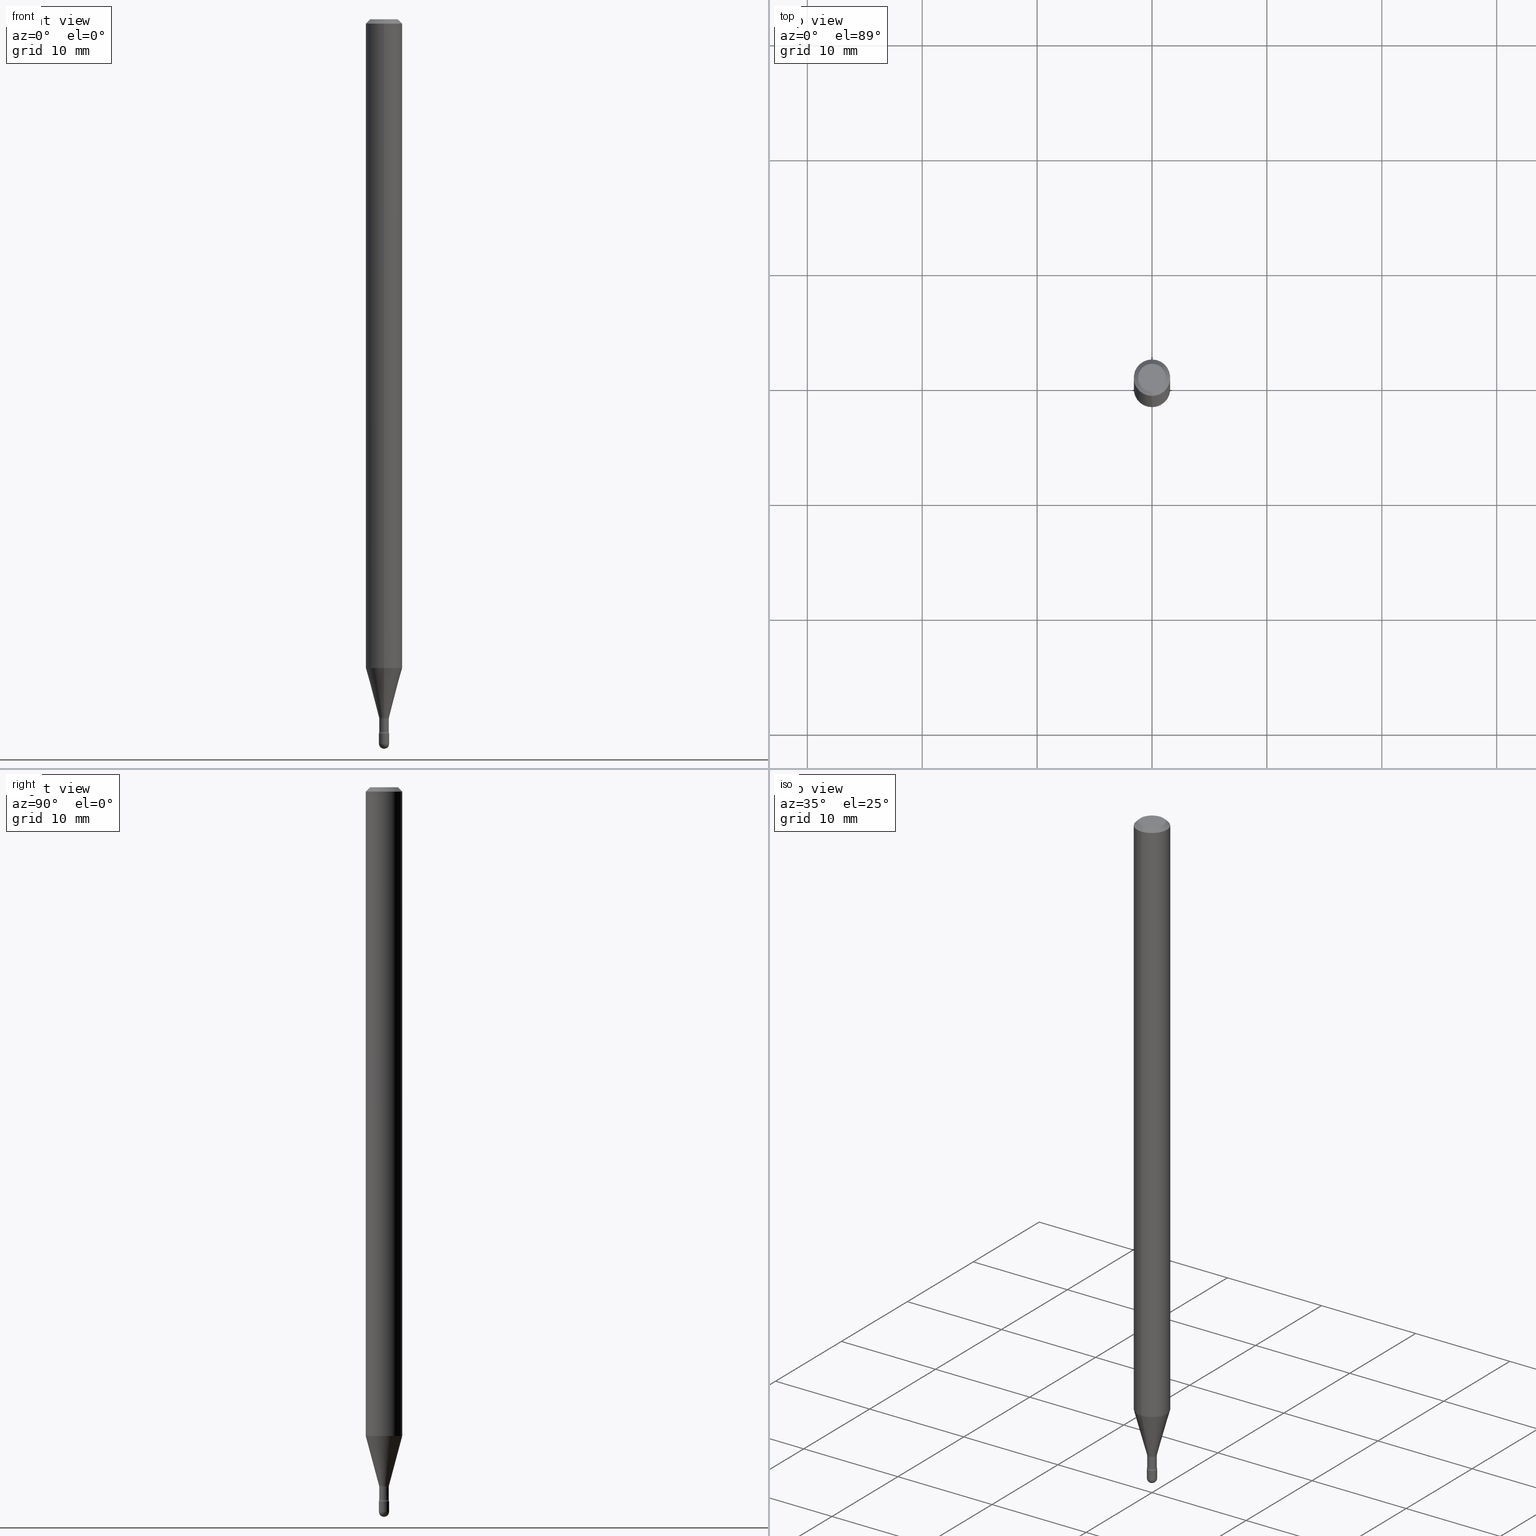
[diagram: canonical four-view strip — front | top / right | iso, engineering-drawing reading convention]
A machine part, canonical four-view strip (front | top / right | iso — engineering-drawing reading convention). The complete STEP part file that produces these views, byte-faithful:
ISO-10303-21;
HEADER;
FILE_DESCRIPTION (( 'STEP AP203' ),
    '1' );
FILE_NAME ('03811.STEP',
    '2024-04-09T20:33:47',
    ( '' ),
    ( '' ),
    'SwSTEP 2.0',
    'SolidWorks 2023',
    '' );
FILE_SCHEMA (( 'CONFIG_CONTROL_DESIGN' ));
ENDSEC;

DATA;
#1 = ADVANCED_FACE ( 'NONE', ( #518 ), #296, .T. ) ;
#2 = ORIENTED_EDGE ( 'NONE', *, *, #265, .F. ) ;
#3 = APPROVAL_ROLE ( '' ) ;
#4 = VECTOR ( 'NONE', #497, 39.37007874015748143 ) ;
#5 = PERSON_AND_ORGANIZATION ( #561, #443 ) ;
#6 = CC_DESIGN_PERSON_AND_ORGANIZATION_ASSIGNMENT ( #305, #326, ( #517 ) ) ;
#7 = EDGE_LOOP ( 'NONE', ( #103, #446 ) ) ;
#8 = APPROVAL_ROLE ( '' ) ;
#9 = AXIS2_PLACEMENT_3D ( 'NONE', #220, #399, #266 ) ;
#10 = LOCAL_TIME ( 16, 33, 47.00000000000000000, #351 ) ;
#11 = APPLICATION_PROTOCOL_DEFINITION ( 'international standard', 'config_control_design', 1994, #51 ) ;
#12 = EDGE_LOOP ( 'NONE', ( #187, #319, #507, #26 ) ) ;
#13 = LINE ( 'NONE', #55, #262 ) ;
#14 = FACE_OUTER_BOUND ( 'NONE', #350, .T. ) ;
#15 = APPROVAL_STATUS ( 'not_yet_approved' ) ;
#16 = EDGE_LOOP ( 'NONE', ( #283, #69, #60, #362 ) ) ;
#17 = EDGE_CURVE ( 'NONE', #406, #105, #72, .T. ) ;
#18 = CARTESIAN_POINT ( 'NONE',  ( 5.984062168735030320E-29, -8.543654836149177676E-15, -2.447000000000000064 ) ) ;
#19 = APPROVAL_DATE_TIME ( #59, #49 ) ;
#20 = ORIENTED_EDGE ( 'NONE', *, *, #543, .F. ) ;
#21 = CARTESIAN_POINT ( 'NONE',  ( -3.773273898774340269E-16, -0.04749999999999999362, 8.309700177680305728E-17 ) ) ;
#22 = DIRECTION ( 'NONE',  ( -2.445478580471014019E-29, 3.491467341509451420E-15, 1.000000000000000000 ) ) ;
#23 = ORIENTED_EDGE ( 'NONE', *, *, #449, .F. ) ;
#24 = DIRECTION ( 'NONE',  ( -2.445478580471014019E-29, 3.491467341509451420E-15, 1.000000000000000000 ) ) ;
#25 = CC_DESIGN_DATE_AND_TIME_ASSIGNMENT ( #394, #87, ( #327 ) ) ;
#26 = ORIENTED_EDGE ( 'NONE', *, *, #341, .T. ) ;
#27 = CARTESIAN_POINT ( 'NONE',  ( 5.970579338663440992E-29, -8.524404928127173343E-15, -2.441486607215153537 ) ) ;
#28 = DIRECTION ( 'NONE',  ( -2.445468806185136597E-29, 3.491481338843145583E-15, 1.000000000000000000 ) ) ;
#29 = LINE ( 'NONE', #33, #292 ) ;
#30 = TOROIDAL_SURFACE ( 'NONE', #271, 0.03145000000000000573, 0.01500000000000000465 ) ;
#31 = DIRECTION ( 'NONE',  ( 1.000000000000000000, -6.982962677686265922E-15, 4.883557194083112340E-29 ) ) ;
#32 = AXIS2_PLACEMENT_3D ( 'NONE', #174, #288, #468 ) ;
#33 = CARTESIAN_POINT ( 'NONE',  ( 4.440892098500625669E-16, 0.06250000000000000000, 2.598566900469053741E-16 ) ) ;
#34 = CARTESIAN_POINT ( 'NONE',  ( 1.168842800325962075E-16, 0.01644999999999163451, -2.396974787463811207 ) ) ;
#35 = DESIGN_CONTEXT ( 'detailed design', #138, 'design' ) ;
#36 = FACE_OUTER_BOUND ( 'NONE', #390, .T. ) ;
#37 = DIRECTION ( 'NONE',  ( -7.105427357601001859E-15, -1.000000000000000000, 0.000000000000000000 ) ) ;
#38 = CARTESIAN_POINT ( 'NONE',  ( 0.000000000000000000, 0.000000000000000000, 0.000000000000000000 ) ) ;
#39 = AXIS2_PLACEMENT_3D ( 'NONE', #237, #289, #58 ) ;
#40 = CIRCLE ( 'NONE', #183, 0.01500000000000000638 ) ;
#41 = LINE ( 'NONE', #73, #505 ) ;
#42 = ADVANCED_FACE ( 'NONE', ( #172 ), #290, .T. ) ;
#43 = EDGE_CURVE ( 'NONE', #367, #267, #392, .T. ) ;
#44 = EDGE_LOOP ( 'NONE', ( #2, #279, #433, #404 ) ) ;
#45 = CALENDAR_DATE ( 2024, 9, 4 ) ;
#46 = AXIS2_PLACEMENT_3D ( 'NONE', #143, #317, #155 ) ;
#47 = AXIS2_PLACEMENT_3D ( 'NONE', #230, #402, #542 ) ;
#48 = LOCAL_TIME ( 16, 33, 47.00000000000000000, #145 ) ;
#49 = APPROVAL ( #15, 'UNSPECIFIED' ) ;
#50 = PERSON_AND_ORGANIZATION_ROLE ( 'creator' ) ;
#51 = APPLICATION_CONTEXT ( 'configuration controlled 3d designs of mechanical parts and assemblies' ) ;
#52 = ORIENTED_EDGE ( 'NONE', *, *, #299, .F. ) ;
#53 = DATE_AND_TIME ( #45, #349 ) ;
#54 = ADVANCED_FACE ( 'NONE', ( #339 ), #162, .F. ) ;
#55 = CARTESIAN_POINT ( 'NONE',  ( -1.184388162973271173E-16, -0.01696111260567233561, -2.393092501787273285 ) ) ;
#56 = ORIENTED_EDGE ( 'NONE', *, *, #440, .F. ) ;
#57 = DIRECTION ( 'NONE',  ( -1.807323732225328562E-15, -0.2588190451025179639, 0.9659258262890690894 ) ) ;
#58 = DIRECTION ( 'NONE',  ( -6.982962677686265922E-15, -1.000000000000000000, 0.000000000000000000 ) ) ;
#59 = DATE_AND_TIME ( #318, #48 ) ;
#60 = ORIENTED_EDGE ( 'NONE', *, *, #424, .T. ) ;
#61 = CARTESIAN_POINT ( 'NONE',  ( 6.070876311354602409E-29, -8.667602423678108373E-15, -2.482499999999999929 ) ) ;
#62 = DIRECTION ( 'NONE',  ( -6.982962677686266711E-15, -1.000000000000000000, 0.000000000000000000 ) ) ;
#63 = VERTEX_POINT ( 'NONE', #252 ) ;
#64 = CLOSED_SHELL ( 'NONE', ( #85, #522, #108, #42, #530 ) ) ;
#65 = AXIS2_PLACEMENT_3D ( 'NONE', #27, #372, #110 ) ;
#66 = EDGE_CURVE ( 'NONE', #255, #152, #144, .T. ) ;
#67 = DIRECTION ( 'NONE',  ( -6.982962677686265922E-15, -1.000000000000000000, 0.000000000000000000 ) ) ;
#68 = DIRECTION ( 'NONE',  ( 1.000000000000000000, -6.982962677686305365E-15, 0.000000000000000000 ) ) ;
#69 = ORIENTED_EDGE ( 'NONE', *, *, #100, .T. ) ;
#70 = DIRECTION ( 'NONE',  ( -6.982962677686265922E-15, -1.000000000000000000, 3.483106191921935554E-15 ) ) ;
#71 = DIRECTION ( 'NONE',  ( -2.445478580471014019E-29, 3.491467341509451420E-15, 1.000000000000000000 ) ) ;
#72 = LINE ( 'NONE', #343, #221 ) ;
#73 = CARTESIAN_POINT ( 'NONE',  ( 1.205159535236945642E-16, 0.01696111260565562676, -2.393092501787273285 ) ) ;
#74 = CARTESIAN_POINT ( 'NONE',  ( 3.668217870706541208E-31, -5.237201012264205677E-17, -0.01500000000000008271 ) ) ;
#75 = FACE_OUTER_BOUND ( 'NONE', #334, .T. ) ;
#76 = AXIS2_PLACEMENT_3D ( 'NONE', #246, #127, #472 ) ;
#77 = EDGE_CURVE ( 'NONE', #532, #190, #131, .T. ) ;
#78 = DIRECTION ( 'NONE',  ( 2.445478580471013739E-29, -3.491467341509451420E-15, -1.000000000000000000 ) ) ;
#79 = DIRECTION ( 'NONE',  ( -2.445468806185136877E-29, 3.491481338843145188E-15, 1.000000000000000000 ) ) ;
#80 = DIRECTION ( 'NONE',  ( -2.445478580471014019E-29, 3.491467341509451420E-15, 1.000000000000000000 ) ) ;
#81 = DIRECTION ( 'NONE',  ( -1.000000000000000000, 7.105427357601001070E-15, -4.926315508542082329E-29 ) ) ;
#82 = DIRECTION ( 'NONE',  ( -2.445478580471014019E-29, 3.491467341509451420E-15, 1.000000000000000000 ) ) ;
#83 = CARTESIAN_POINT ( 'NONE',  ( 6.070876311354602409E-29, -8.667602423678108373E-15, -2.482499999999999929 ) ) ;
#84 = CIRCLE ( 'NONE', #101, 0.06250000000000000000 ) ;
#85 = ADVANCED_FACE ( 'NONE', ( #36 ), #467, .T. ) ;
#86 = CC_DESIGN_APPROVAL ( #388, ( #517 ) ) ;
#87 = DATE_TIME_ROLE ( 'creation_date' ) ;
#88 = ORIENTED_EDGE ( 'NONE', *, *, #149, .T. ) ;
#89 = ADVANCED_FACE ( 'NONE', ( #249 ), #421, .T. ) ;
#90 = VERTEX_POINT ( 'NONE', #119 ) ;
#91 = PERSON_AND_ORGANIZATION ( #561, #443 ) ;
#92 = AXIS2_PLACEMENT_3D ( 'NONE', #336, #457, #448 ) ;
#93 = VECTOR ( 'NONE', #96, 39.37007874015748143 ) ;
#94 = VERTEX_POINT ( 'NONE', #416 ) ;
#95 = EDGE_CURVE ( 'NONE', #524, #105, #29, .T. ) ;
#96 = DIRECTION ( 'NONE',  ( -2.445478580471014019E-29, 3.491467341509451420E-15, 1.000000000000000000 ) ) ;
#97 = CALENDAR_DATE ( 2024, 9, 4 ) ;
#98 = ORIENTED_EDGE ( 'NONE', *, *, #149, .F. ) ;
#99 = FACE_OUTER_BOUND ( 'NONE', #273, .T. ) ;
#100 = EDGE_CURVE ( 'NONE', #94, #308, #564, .T. ) ;
#101 = AXIS2_PLACEMENT_3D ( 'NONE', #495, #405, #506 ) ;
#102 = AXIS2_PLACEMENT_3D ( 'NONE', #546, #324, #67 ) ;
#103 = ORIENTED_EDGE ( 'NONE', *, *, #235, .T. ) ;
#104 = FACE_OUTER_BOUND ( 'NONE', #44, .T. ) ;
#105 = VERTEX_POINT ( 'NONE', #410 ) ;
#106 = DIRECTION ( 'NONE',  ( -6.982962677686265133E-15, -1.000000000000000000, 0.000000000000000000 ) ) ;
#107 = CARTESIAN_POINT ( 'NONE',  ( -4.364351673553374845E-16, -0.06250000000000778544, -2.223139060311453363 ) ) ;
#108 = ADVANCED_FACE ( 'NONE', ( #205 ), #247, .T. ) ;
#109 = ORIENTED_EDGE ( 'NONE', *, *, #461, .F. ) ;
#110 = DIRECTION ( 'NONE',  ( -6.982962677686265133E-15, -1.000000000000000000, 3.491467341509451026E-15 ) ) ;
#111 = DIRECTION ( 'NONE',  ( -6.982962677686266711E-15, -1.000000000000000000, 0.000000000000000000 ) ) ;
#112 = AXIS2_PLACEMENT_3D ( 'NONE', #207, #82, #377 ) ;
#113 = VERTEX_POINT ( 'NONE', #415 ) ;
#114 = CONICAL_SURFACE ( 'NONE', #344, 0.06250000000000000000, 0.7853981633974483900 ) ;
#115 = DIRECTION ( 'NONE',  ( 2.445478580471014019E-29, -3.491467341509451420E-15, -1.000000000000000000 ) ) ;
#116 = ORIENTED_EDGE ( 'NONE', *, *, #43, .T. ) ;
#117 = DIRECTION ( 'NONE',  ( -6.982962677686265133E-15, -1.000000000000000000, 0.000000000000000000 ) ) ;
#118 = DIRECTION ( 'NONE',  ( -2.445468806185136597E-29, 3.491481338843145583E-15, 1.000000000000000000 ) ) ;
#119 = CARTESIAN_POINT ( 'NONE',  ( 0.01750000000000000167, -8.665856683008687659E-15, -2.447000000000000064 ) ) ;
#120 = CARTESIAN_POINT ( 'NONE',  ( 3.668217870706541208E-31, -5.237201012264205677E-17, -0.01500000000000008271 ) ) ;
#121 = EDGE_CURVE ( 'NONE', #267, #367, #364, .T. ) ;
#122 = CARTESIAN_POINT ( 'NONE',  ( 1.206146293953367664E-16, 0.01644999999999147838, -2.441486607215153537 ) ) ;
#123 = DIRECTION ( 'NONE',  ( -1.000000000000000000, 6.982962677686265922E-15, -4.883557194083112340E-29 ) ) ;
#124 = AXIS2_PLACEMENT_3D ( 'NONE', #544, #28, #68 ) ;
#125 = CIRCLE ( 'NONE', #470, 0.01500000000000002373 ) ;
#126 = DIRECTION ( 'NONE',  ( 6.982962677686265922E-15, 1.000000000000000000, 0.000000000000000000 ) ) ;
#127 = DIRECTION ( 'NONE',  ( -1.000000000000000000, 6.982962677686265922E-15, -4.883557194083112340E-29 ) ) ;
#128 = DIRECTION ( 'NONE',  ( 1.000000000000000000, -6.982962677686265922E-15, 4.876176775795936353E-29 ) ) ;
#129 = ADVANCED_FACE ( 'NONE', ( #373 ), #30, .F. ) ;
#130 = CALENDAR_DATE ( 2024, 9, 4 ) ;
#131 = CIRCLE ( 'NONE', #430, 0.01749999999999999820 ) ;
#132 = CIRCLE ( 'NONE', #332, 0.04749999999999999362 ) ;
#133 = ORIENTED_EDGE ( 'NONE', *, *, #489, .T. ) ;
#134 = DATE_AND_TIME ( #527, #10 ) ;
#135 = AXIS2_PLACEMENT_3D ( 'NONE', #244, #286, #202 ) ;
#136 = AXIS2_PLACEMENT_3D ( 'NONE', #201, #460, #188 ) ;
#137 = ORIENTED_EDGE ( 'NONE', *, *, #341, .F. ) ;
#138 = APPLICATION_CONTEXT ( 'configuration controlled 3d designs of mechanical parts and assemblies' ) ;
#139 = ORIENTED_EDGE ( 'NONE', *, *, #315, .F. ) ;
#140 = EDGE_CURVE ( 'NONE', #524, #264, #84, .T. ) ;
#141 = ORIENTED_EDGE ( 'NONE', *, *, #369, .F. ) ;
#142 = FACE_OUTER_BOUND ( 'NONE', #242, .T. ) ;
#143 = CARTESIAN_POINT ( 'NONE',  ( 5.984062168735030320E-29, -8.543654836149177676E-15, -2.447000000000000064 ) ) ;
#144 = CIRCLE ( 'NONE', #342, 0.01749999999999999820 ) ;
#145 = COORDINATED_UNIVERSAL_TIME_OFFSET ( 5, 0, .BEHIND. ) ;
#146 = CIRCLE ( 'NONE', #222, 0.01644999999999999934 ) ;
#147 = ORIENTED_EDGE ( 'NONE', *, *, #284, .T. ) ;
#148 = CARTESIAN_POINT ( 'NONE',  ( 1.168842800325364759E-16, 0.01644999999999999934, 4.206387611234156260E-16 ) ) ;
#149 = EDGE_CURVE ( 'NONE', #190, #255, #529, .T. ) ;
#150 = CARTESIAN_POINT ( 'NONE',  ( -1.243449787579568514E-16, -0.01750000000000867181, -2.482500000000000817 ) ) ;
#151 = SHAPE_DEFINITION_REPRESENTATION ( #473, #476 ) ;
#152 = VERTEX_POINT ( 'NONE', #150 ) ;
#153 = DIRECTION ( 'NONE',  ( -2.445478580471014019E-29, 3.491467341509451420E-15, 1.000000000000000000 ) ) ;
#154 = ORIENTED_EDGE ( 'NONE', *, *, #380, .T. ) ;
#155 = DIRECTION ( 'NONE',  ( 1.000000000000000000, -6.982962677686265922E-15, 4.876176775795935793E-29 ) ) ;
#156 = CIRCLE ( 'NONE', #492, 0.01749999999999999820 ) ;
#157 = ORIENTED_EDGE ( 'NONE', *, *, #180, .F. ) ;
#158 = AXIS2_PLACEMENT_3D ( 'NONE', #61, #31, #519 ) ;
#159 = ADVANCED_FACE ( 'NONE', ( #104 ), #383, .T. ) ;
#160 = CARTESIAN_POINT ( 'NONE',  ( 2.234656903966112561E-16, 0.03144999999999148477, -2.441486607215153537 ) ) ;
#161 = CARTESIAN_POINT ( 'NONE',  ( 5.436638953400117610E-29, -7.762017424711450780E-15, -2.223139060311453363 ) ) ;
#162 = PLANE ( 'NONE',  #469 ) ;
#163 = CYLINDRICAL_SURFACE ( 'NONE', #32, 0.01750000000000000167 ) ;
#164 = DIRECTION ( 'NONE',  ( -2.445478580471014019E-29, 3.491467341509451420E-15, 1.000000000000000000 ) ) ;
#165 =( LENGTH_UNIT ( ) NAMED_UNIT ( * ) SI_UNIT ( $, .METRE. ) );
#166 = ORIENTED_EDGE ( 'NONE', *, *, #121, .F. ) ;
#167 = AXIS2_PLACEMENT_3D ( 'NONE', #161, #22, #510 ) ;
#168 =( NAMED_UNIT ( * ) PLANE_ANGLE_UNIT ( ) SI_UNIT ( $, .RADIAN. ) );
#169 = CIRCLE ( 'NONE', #531, 0.06250000000000000000 ) ;
#170 = CARTESIAN_POINT ( 'NONE',  ( -1.169113584055446105E-44, 1.669184350826100908E-30, 4.780733988912460139E-16 ) ) ;
#171 = ADVANCED_FACE ( 'NONE', ( #14 ), #301, .T. ) ;
#172 = FACE_OUTER_BOUND ( 'NONE', #441, .T. ) ;
#173 = CARTESIAN_POINT ( 'NONE',  ( -0.01750000000000000167, 1.243449787580175444E-16, -8.608136407946085539E-31 ) ) ;
#174 = CARTESIAN_POINT ( 'NONE',  ( 0.000000000000000000, 0.000000000000000000, 0.000000000000000000 ) ) ;
#175 = EDGE_LOOP ( 'NONE', ( #397, #306 ) ) ;
#176 = AXIS2_PLACEMENT_3D ( 'NONE', #74, #115, #275 ) ;
#177 = CONICAL_SURFACE ( 'NONE', #216, 0.01696111260566398118, 0.2617993877991500740 ) ;
#178 = ORIENTED_EDGE ( 'NONE', *, *, #465, .T. ) ;
#179 = COORDINATED_UNIVERSAL_TIME_OFFSET ( 5, 0, .BEHIND. ) ;
#180 = EDGE_CURVE ( 'NONE', #308, #94, #418, .T. ) ;
#181 = PERSON_AND_ORGANIZATION_ROLE ( 'creator' ) ;
#182 = ORIENTED_EDGE ( 'NONE', *, *, #224, .F. ) ;
#183 = AXIS2_PLACEMENT_3D ( 'NONE', #291, #211, #117 ) ;
#184 = LOCAL_TIME ( 16, 33, 47.00000000000000000, #179 ) ;
#185 = CC_DESIGN_PERSON_AND_ORGANIZATION_ASSIGNMENT ( #509, #464, ( #333 ) ) ;
#186 = ORIENTED_EDGE ( 'NONE', *, *, #95, .F. ) ;
#187 = ORIENTED_EDGE ( 'NONE', *, *, #483, .F. ) ;
#188 = DIRECTION ( 'NONE',  ( 7.105427357600999492E-15, 1.000000000000000000, 0.000000000000000000 ) ) ;
#189 = CARTESIAN_POINT ( 'NONE',  ( 5.852256454206568182E-29, -8.355404315201413602E-15, -2.393092501787273285 ) ) ;
#190 = VERTEX_POINT ( 'NONE', #376 ) ;
#191 = EDGE_CURVE ( 'NONE', #152, #532, #156, .T. ) ;
#192 = CARTESIAN_POINT ( 'NONE',  ( 5.852256454206568182E-29, -8.355404315201413602E-15, -2.393092501787273285 ) ) ;
#193 = DIRECTION ( 'NONE',  ( -2.445478580471014019E-29, 3.491467341509451420E-15, 1.000000000000000000 ) ) ;
#194 = TOROIDAL_SURFACE ( 'NONE', #92, 0.03144999999999999879, 0.01500000000000002373 ) ;
#195 = VECTOR ( 'NONE', #79, 39.37007874015748143 ) ;
#196 = VERTEX_POINT ( 'NONE', #556 ) ;
#197 = DIMENSIONAL_EXPONENTS ( 1.000000000000000000, 0.000000000000000000, 0.000000000000000000, 0.000000000000000000, 0.000000000000000000, 0.000000000000000000, 0.000000000000000000 ) ;
#198 = CARTESIAN_POINT ( 'NONE',  ( -2.196141762131744153E-16, -0.03145000000000836710, -2.396974787463811207 ) ) ;
#199 = CARTESIAN_POINT ( 'NONE',  ( 6.070876311354603530E-29, -8.667602423678111529E-15, -2.482500000000000817 ) ) ;
#200 = ORIENTED_EDGE ( 'NONE', *, *, #219, .T. ) ;
#201 = CARTESIAN_POINT ( 'NONE',  ( 2.234656903966100728E-16, 0.03144999999999163048, -2.396974787463811207 ) ) ;
#202 = DIRECTION ( 'NONE',  ( -6.982962677686266711E-15, -1.000000000000000000, 0.000000000000000000 ) ) ;
#203 = EDGE_LOOP ( 'NONE', ( #200, #231, #563, #23 ) ) ;
#204 = DIRECTION ( 'NONE',  ( -6.982962677686266711E-15, -1.000000000000000000, 0.000000000000000000 ) ) ;
#205 = FACE_OUTER_BOUND ( 'NONE', #7, .T. ) ;
#206 = ADVANCED_FACE ( 'NONE', ( #501 ), #194, .F. ) ;
#207 = CARTESIAN_POINT ( 'NONE',  ( -1.169113584055446105E-44, 1.669184350826100908E-30, 4.780733988912460139E-16 ) ) ;
#208 = CIRCLE ( 'NONE', #493, 0.01644999999999999934 ) ;
#209 = CARTESIAN_POINT ( 'NONE',  ( 5.861727071954997320E-29, -8.368992740107411140E-15, -2.396974787463811207 ) ) ;
#210 = DIRECTION ( 'NONE',  ( -2.445478580471014019E-29, 3.491467341509451420E-15, 1.000000000000000000 ) ) ;
#211 = DIRECTION ( 'NONE',  ( -1.000000000000000000, 6.982962677686265922E-15, -4.883557194083112340E-29 ) ) ;
#212 = DIRECTION ( 'NONE',  ( -2.445468806185136597E-29, 3.491481338843145583E-15, 1.000000000000000000 ) ) ;
#213 = CARTESIAN_POINT ( 'NONE',  ( 4.440892098501168504E-16, 0.06249999999999222844, -2.223139060311453807 ) ) ;
#214 = PRODUCT_RELATED_PRODUCT_CATEGORY ( 'detail', '', ( #551 ) ) ;
#215 = ORIENTED_EDGE ( 'NONE', *, *, #226, .F. ) ;
#216 = AXIS2_PLACEMENT_3D ( 'NONE', #192, #407, #236 ) ;
#217 = DIRECTION ( 'NONE',  ( -2.445478580471014019E-29, 3.491467341509451420E-15, 1.000000000000000000 ) ) ;
#218 = LINE ( 'NONE', #173, #195 ) ;
#219 = EDGE_CURVE ( 'NONE', #264, #524, #408, .T. ) ;
#220 = CARTESIAN_POINT ( 'NONE',  ( 0.000000000000000000, 0.000000000000000000, 0.000000000000000000 ) ) ;
#221 = VECTOR ( 'NONE', #511, 39.37007874015748143 ) ;
#222 = AXIS2_PLACEMENT_3D ( 'NONE', #363, #412, #204 ) ;
#223 = ORIENTED_EDGE ( 'NONE', *, *, #516, .F. ) ;
#224 = EDGE_CURVE ( 'NONE', #557, #90, #238, .T. ) ;
#225 = PERSON_AND_ORGANIZATION_ROLE ( 'design_owner' ) ;
#226 = EDGE_CURVE ( 'NONE', #63, #229, #281, .T. ) ;
#227 = COORDINATED_UNIVERSAL_TIME_OFFSET ( 5, 0, .BEHIND. ) ;
#228 = AXIS2_PLACEMENT_3D ( 'NONE', #321, #278, #559 ) ;
#229 = VERTEX_POINT ( 'NONE', #370 ) ;
#230 = CARTESIAN_POINT ( 'NONE',  ( 1.222018468595694927E-16, 0.01749999999999145642, -2.447000000000000064 ) ) ;
#231 = ORIENTED_EDGE ( 'NONE', *, *, #95, .T. ) ;
#232 = CARTESIAN_POINT ( 'NONE',  ( -4.364351673553916201E-16, -0.06250000000000000000, 6.962901077355868016E-16 ) ) ;
#233 = CARTESIAN_POINT ( 'NONE',  ( 5.861750500671810310E-29, -8.368959188851455956E-15, -2.396974787463811207 ) ) ;
#234 = ORIENTED_EDGE ( 'NONE', *, *, #180, .T. ) ;
#235 = EDGE_CURVE ( 'NONE', #90, #557, #419, .T. ) ;
#236 = DIRECTION ( 'NONE',  ( -6.982962677686266711E-15, -1.000000000000000000, 0.000000000000000000 ) ) ;
#237 = CARTESIAN_POINT ( 'NONE',  ( 5.984086086412572106E-29, -8.543620584673628985E-15, -2.447000000000000064 ) ) ;
#238 = CIRCLE ( 'NONE', #248, 0.01750000000000000167 ) ;
#239 = ORIENTED_EDGE ( 'NONE', *, *, #543, .T. ) ;
#240 = DIRECTION ( 'NONE',  ( 7.105427357601000281E-15, 1.000000000000000000, 0.000000000000000000 ) ) ;
#241 = DIRECTION ( 'NONE',  ( 1.000000000000000000, -6.982962677686248567E-15, 0.000000000000000000 ) ) ;
#242 = EDGE_LOOP ( 'NONE', ( #141, #215 ) ) ;
#243 = FACE_OUTER_BOUND ( 'NONE', #463, .T. ) ;
#244 = CARTESIAN_POINT ( 'NONE',  ( 5.852256454206568182E-29, -8.355404315201413602E-15, -2.393092501787273285 ) ) ;
#245 = CARTESIAN_POINT ( 'NONE',  ( 6.070876311354603530E-29, -8.667602423678111529E-15, -2.482500000000000817 ) ) ;
#246 = CARTESIAN_POINT ( 'NONE',  ( 6.070876311354602409E-29, -8.667602423678108373E-15, -2.482499999999999929 ) ) ;
#247 = PLANE ( 'NONE',  #46 ) ;
#248 = AXIS2_PLACEMENT_3D ( 'NONE', #18, #118, #241 ) ;
#249 = FACE_OUTER_BOUND ( 'NONE', #496, .T. ) ;
#250 = AXIS2_PLACEMENT_3D ( 'NONE', #160, #360, #240 ) ;
#251 = UNCERTAINTY_MEASURE_WITH_UNIT (LENGTH_MEASURE( 1.000000000000000082E-05 ), #295, 'distance_accuracy_value', 'NONE');
#252 = CARTESIAN_POINT ( 'NONE',  ( 1.243449787580773745E-16, 0.01749999999999145642, -2.447000000000000064 ) ) ;
#253 = EDGE_CURVE ( 'NONE', #536, #113, #208, .T. ) ;
#254 = DIRECTION ( 'NONE',  ( 6.982962677686265922E-15, 1.000000000000000000, -3.483106191921935554E-15 ) ) ;
#255 = VERTEX_POINT ( 'NONE', #452 ) ;
#256 = DIRECTION ( 'NONE',  ( 2.445478580471014019E-29, -3.491467341509451420E-15, -1.000000000000000000 ) ) ;
#257 = DIRECTION ( 'NONE',  ( -6.982962677686266711E-15, -1.000000000000000000, 3.491467341509449842E-15 ) ) ;
#258 = CC_DESIGN_APPROVAL ( #508, ( #327 ) ) ;
#259 = CC_DESIGN_PERSON_AND_ORGANIZATION_ASSIGNMENT ( #437, #50, ( #517 ) ) ;
#260 = ORIENTED_EDGE ( 'NONE', *, *, #396, .T. ) ;
#261 = AXIS2_PLACEMENT_3D ( 'NONE', #38, #346, #128 ) ;
#262 = VECTOR ( 'NONE', #57, 39.37007874015748854 ) ;
#263 = APPROVAL_PERSON_ORGANIZATION ( #91, #388, #3 ) ;
#264 = VERTEX_POINT ( 'NONE', #107 ) ;
#265 = EDGE_CURVE ( 'NONE', #312, #406, #480, .T. ) ;
#266 = DIRECTION ( 'NONE',  ( 1.000000000000000000, 0.000000000000000000, 0.000000000000000000 ) ) ;
#267 = VERTEX_POINT ( 'NONE', #122 ) ;
#268 = APPROVAL_DATE_TIME ( #53, #508 ) ;
#269 = ORIENTED_EDGE ( 'NONE', *, *, #322, .F. ) ;
#270 = DIRECTION ( 'NONE',  ( -6.982962677686265922E-15, -1.000000000000000000, 3.491467341509452209E-15 ) ) ;
#271 = AXIS2_PLACEMENT_3D ( 'NONE', #462, #550, #413 ) ;
#272 = APPROVAL_PERSON_ORGANIZATION ( #432, #508, #490 ) ;
#273 = EDGE_LOOP ( 'NONE', ( #186, #313, #304, #137 ) ) ;
#274 = LINE ( 'NONE', #232, #4 ) ;
#275 = DIRECTION ( 'NONE',  ( 6.982962677686265922E-15, 1.000000000000000000, -3.483106191921935554E-15 ) ) ;
#276 = ADVANCED_FACE ( 'NONE', ( #426 ), #300, .T. ) ;
#277 = ORIENTED_EDGE ( 'NONE', *, *, #121, .T. ) ;
#278 = DIRECTION ( 'NONE',  ( -2.445478580471014019E-29, 3.491467341509451420E-15, 1.000000000000000000 ) ) ;
#279 = ORIENTED_EDGE ( 'NONE', *, *, #483, .T. ) ;
#280 = CARTESIAN_POINT ( 'NONE',  ( 3.668217870706541208E-31, -5.237201012264205677E-17, -0.01500000000000008271 ) ) ;
#281 = CIRCLE ( 'NONE', #39, 0.01750000000000000167 ) ;
#282 =( GEOMETRIC_REPRESENTATION_CONTEXT ( 3 ) GLOBAL_UNCERTAINTY_ASSIGNED_CONTEXT ( ( #251 ) ) GLOBAL_UNIT_ASSIGNED_CONTEXT ( ( #295, #168, #521 ) ) REPRESENTATION_CONTEXT ( 'NONE', 'WORKASPACE' ) );
#283 = ORIENTED_EDGE ( 'NONE', *, *, #465, .F. ) ;
#284 = EDGE_CURVE ( 'NONE', #367, #113, #486, .T. ) ;
#285 = DIRECTION ( 'NONE',  ( -1.000000000000000000, 6.982962677686265922E-15, -4.883557194083112340E-29 ) ) ;
#286 = DIRECTION ( 'NONE',  ( -2.445478580471014019E-29, 3.491467341509451420E-15, 1.000000000000000000 ) ) ;
#287 = ORIENTED_EDGE ( 'NONE', *, *, #219, .F. ) ;
#288 = DIRECTION ( 'NONE',  ( -2.445468806185136597E-29, 3.491481338843145583E-15, 1.000000000000000000 ) ) ;
#289 = DIRECTION ( 'NONE',  ( -2.445478580471014019E-29, 3.491467341509451420E-15, 1.000000000000000000 ) ) ;
#290 = SPHERICAL_SURFACE ( 'NONE', #354, 0.01750000000000000860 ) ;
#291 = CARTESIAN_POINT ( 'NONE',  ( -2.196141762131733800E-16, -0.03145000000000853363, -2.441486607215153537 ) ) ;
#292 = VECTOR ( 'NONE', #210, 39.37007874015748143 ) ;
#293 = CARTESIAN_POINT ( 'NONE',  ( 6.070876311354603530E-29, -8.667602423678111529E-15, -2.482500000000000817 ) ) ;
#294 = VECTOR ( 'NONE', #494, 39.37007874015748143 ) ;
#295 =( CONVERSION_BASED_UNIT ( 'INCH', #340 ) LENGTH_UNIT ( ) NAMED_UNIT ( #197 ) );
#296 = CYLINDRICAL_SURFACE ( 'NONE', #112, 0.01644999999999999934 ) ;
#297 = DIRECTION ( 'NONE',  ( 1.839019923739598738E-15, 0.2588190451025247363, 0.9659258262890673130 ) ) ;
#298 = CARTESIAN_POINT ( 'NONE',  ( -1.169113584055446105E-44, 1.669184350826100908E-30, 4.780733988912460139E-16 ) ) ;
#299 = EDGE_CURVE ( 'NONE', #532, #90, #329, .T. ) ;
#300 = CYLINDRICAL_SURFACE ( 'NONE', #409, 0.06250000000000000000 ) ;
#301 = CONICAL_SURFACE ( 'NONE', #135, 0.01696111260566398118, 0.2617993877991500740 ) ;
#302 = TOROIDAL_SURFACE ( 'NONE', #65, 0.03145000000000000573, 0.01500000000000000465 ) ;
#303 = ADVANCED_FACE ( 'NONE', ( #375 ), #177, .T. ) ;
#304 = ORIENTED_EDGE ( 'NONE', *, *, #449, .T. ) ;
#305 = PERSON_AND_ORGANIZATION ( #561, #443 ) ;
#306 = ORIENTED_EDGE ( 'NONE', *, *, #265, .T. ) ;
#307 = APPROVAL_DATE_TIME ( #134, #388 ) ;
#308 = VERTEX_POINT ( 'NONE', #554 ) ;
#309 = AXIS2_PLACEMENT_3D ( 'NONE', #447, #24, #270 ) ;
#310 = CARTESIAN_POINT ( 'NONE',  ( -1.148697360479390763E-16, -0.01644999999999999934, 5.355080366590765005E-16 ) ) ;
#311 = SECURITY_CLASSIFICATION_LEVEL ( 'unclassified' ) ;
#312 = VERTEX_POINT ( 'NONE', #21 ) ;
#313 = ORIENTED_EDGE ( 'NONE', *, *, #140, .T. ) ;
#314 = LINE ( 'NONE', #148, #294 ) ;
#315 = EDGE_CURVE ( 'NONE', #308, #113, #125, .T. ) ;
#316 = CIRCLE ( 'NONE', #158, 0.01750000000000000860 ) ;
#317 = DIRECTION ( 'NONE',  ( -2.438088387897960049E-29, 3.491481338843145188E-15, 1.000000000000000000 ) ) ;
#318 = CALENDAR_DATE ( 2024, 9, 4 ) ;
#319 = ORIENTED_EDGE ( 'NONE', *, *, #475, .F. ) ;
#320 = DIRECTION ( 'NONE',  ( -2.445478580471014019E-29, 3.491467341509451420E-15, 1.000000000000000000 ) ) ;
#321 = CARTESIAN_POINT ( 'NONE',  ( 2.023623932881207323E-45, -2.889041897153307729E-31, -8.274769694489587087E-17 ) ) ;
#322 = EDGE_CURVE ( 'NONE', #94, #536, #565, .T. ) ;
#323 = ORIENTED_EDGE ( 'NONE', *, *, #235, .F. ) ;
#324 = DIRECTION ( 'NONE',  ( -2.445478580471014019E-29, 3.491467341509451420E-15, 1.000000000000000000 ) ) ;
#325 = DIRECTION ( 'NONE',  ( -2.445468806185136597E-29, 3.491481338843145583E-15, 1.000000000000000000 ) ) ;
#326 = PERSON_AND_ORGANIZATION_ROLE ( 'design_supplier' ) ;
#327 = PRODUCT_DEFINITION ( 'UNKNOWN', '', #517, #35 ) ;
#328 = ORIENTED_EDGE ( 'NONE', *, *, #226, .T. ) ;
#329 = LINE ( 'NONE', #504, #365 ) ;
#330 = AXIS2_PLACEMENT_3D ( 'NONE', #513, #80, #560 ) ;
#331 = DIRECTION ( 'NONE',  ( -6.982962677686266711E-15, -1.000000000000000000, 0.000000000000000000 ) ) ;
#332 = AXIS2_PLACEMENT_3D ( 'NONE', #389, #477, #558 ) ;
#333 = SECURITY_CLASSIFICATION ( '', '', #311 ) ;
#334 = EDGE_LOOP ( 'NONE', ( #474, #539, #488, #139 ) ) ;
#335 = CARTESIAN_POINT ( 'NONE',  ( 3.840629472727447874E-16, 0.04749999999999999362, -2.485923956665947867E-16 ) ) ;
#336 = CARTESIAN_POINT ( 'NONE',  ( 5.861727071954997320E-29, -8.368992740107411140E-15, -2.396974787463811207 ) ) ;
#337 = DIRECTION ( 'NONE',  ( 6.982962677686265922E-15, 1.000000000000000000, -3.491467341509451420E-15 ) ) ;
#338 = DIRECTION ( 'NONE',  ( -4.851104656540964275E-15, -0.7071067811865500152, -0.7071067811865450192 ) ) ;
#339 = FACE_OUTER_BOUND ( 'NONE', #175, .T. ) ;
#340 = LENGTH_MEASURE_WITH_UNIT ( LENGTH_MEASURE( 0.02539999999999999897 ), #165 );
#341 = EDGE_CURVE ( 'NONE', #105, #491, #515, .T. ) ;
#342 = AXIS2_PLACEMENT_3D ( 'NONE', #293, #212, #566 ) ;
#343 = CARTESIAN_POINT ( 'NONE',  ( 4.364351673553919652E-16, 0.06249999999999995143, -0.01500000000000030129 ) ) ;
#344 = AXIS2_PLACEMENT_3D ( 'NONE', #120, #256, #254 ) ;
#345 = LINE ( 'NONE', #479, #541 ) ;
#346 = DIRECTION ( 'NONE',  ( -2.445468806185136597E-29, 3.491481338843145583E-15, 1.000000000000000000 ) ) ;
#347 = COORDINATED_UNIVERSAL_TIME_OFFSET ( 5, 0, .BEHIND. ) ;
#348 = ORIENTED_EDGE ( 'NONE', *, *, #191, .F. ) ;
#349 = LOCAL_TIME ( 16, 33, 47.00000000000000000, #347 ) ;
#350 = EDGE_LOOP ( 'NONE', ( #234, #178, #287, #548 ) ) ;
#351 = COORDINATED_UNIVERSAL_TIME_OFFSET ( 5, 0, .BEHIND. ) ;
#352 = DIRECTION ( 'NONE',  ( -6.982962677686265922E-15, -1.000000000000000000, 3.491467341509452209E-15 ) ) ;
#353 = ADVANCED_FACE ( 'NONE', ( #243 ), #302, .F. ) ;
#354 = AXIS2_PLACEMENT_3D ( 'NONE', #382, #123, #126 ) ;
#355 = APPLICATION_PROTOCOL_DEFINITION ( 'international standard', 'config_control_design', 1994, #138 ) ;
#356 = CIRCLE ( 'NONE', #250, 0.01500000000000000638 ) ;
#357 = EDGE_LOOP ( 'NONE', ( #442, #450, #239, #526 ) ) ;
#358 = ORIENTED_EDGE ( 'NONE', *, *, #77, .T. ) ;
#359 = EDGE_CURVE ( 'NONE', #491, #105, #169, .T. ) ;
#360 = DIRECTION ( 'NONE',  ( 1.000000000000000000, -7.105427357601001070E-15, 4.926315337124183355E-29 ) ) ;
#361 = DIRECTION ( 'NONE',  ( -6.982962677686266711E-15, -1.000000000000000000, 0.000000000000000000 ) ) ;
#362 = ORIENTED_EDGE ( 'NONE', *, *, #140, .F. ) ;
#363 = CARTESIAN_POINT ( 'NONE',  ( 5.861750500671810310E-29, -8.368959188851455956E-15, -2.396974787463811207 ) ) ;
#364 = CIRCLE ( 'NONE', #503, 0.01645000000000000281 ) ;
#365 = VECTOR ( 'NONE', #549, 39.37007874015748143 ) ;
#366 = CARTESIAN_POINT ( 'NONE',  ( 5.970603202451505575E-29, -8.524370753824422885E-15, -2.441486607215153537 ) ) ;
#367 = VERTEX_POINT ( 'NONE', #451 ) ;
#368 = DIRECTION ( 'NONE',  ( -6.982962677686265922E-15, -1.000000000000000000, 3.483106191921935554E-15 ) ) ;
#369 = EDGE_CURVE ( 'NONE', #229, #63, #431, .T. ) ;
#370 = CARTESIAN_POINT ( 'NONE',  ( -1.222018468594497830E-16, -0.01750000000000854344, -2.447000000000000064 ) ) ;
#371 = ORIENTED_EDGE ( 'NONE', *, *, #516, .T. ) ;
#372 = DIRECTION ( 'NONE',  ( -2.445478580471014019E-29, 3.491467341509451420E-15, 1.000000000000000000 ) ) ;
#373 = FACE_OUTER_BOUND ( 'NONE', #357, .T. ) ;
#374 = ORIENTED_EDGE ( 'NONE', *, *, #66, .F. ) ;
#375 = FACE_OUTER_BOUND ( 'NONE', #16, .T. ) ;
#376 = CARTESIAN_POINT ( 'NONE',  ( 1.222018468595703801E-16, 0.01749999999999133499, -2.482500000000000817 ) ) ;
#377 = DIRECTION ( 'NONE',  ( -6.982962677686266711E-15, -1.000000000000000000, 3.491467341509449842E-15 ) ) ;
#378 = FACE_OUTER_BOUND ( 'NONE', #453, .T. ) ;
#379 = CARTESIAN_POINT ( 'NONE',  ( 5.852256454206568182E-29, -8.355404315201413602E-15, -2.393092501787273285 ) ) ;
#380 = EDGE_CURVE ( 'NONE', #267, #63, #356, .T. ) ;
#381 = CARTESIAN_POINT ( 'NONE',  ( 0.01749999999999999820, -8.727830476773153796E-15, -2.482500000000000817 ) ) ;
#382 = CARTESIAN_POINT ( 'NONE',  ( 6.070876311354602409E-29, -8.667602423678108373E-15, -2.482499999999999929 ) ) ;
#383 = CONICAL_SURFACE ( 'NONE', #176, 0.06250000000000000000, 0.7853981633974483900 ) ;
#384 = ORIENTED_EDGE ( 'NONE', *, *, #440, .T. ) ;
#385 = TOROIDAL_SURFACE ( 'NONE', #456, 0.03144999999999999879, 0.01500000000000002373 ) ;
#386 = APPROVAL_PERSON_ORGANIZATION ( #403, #49, #8 ) ;
#387 = SPHERICAL_SURFACE ( 'NONE', #76, 0.01750000000000000860 ) ;
#388 = APPROVAL ( #391, 'UNSPECIFIED' ) ;
#389 = CARTESIAN_POINT ( 'NONE',  ( 2.023623932881207323E-45, -2.889041897153307729E-31, -8.274769694489587087E-17 ) ) ;
#390 = EDGE_LOOP ( 'NONE', ( #88, #371, #323, #52, #358 ) ) ;
#391 = APPROVAL_STATUS ( 'not_yet_approved' ) ;
#392 = CIRCLE ( 'NONE', #330, 0.01645000000000000281 ) ;
#393 = ORIENTED_EDGE ( 'NONE', *, *, #461, .T. ) ;
#394 = DATE_AND_TIME ( #130, #184 ) ;
#395 = MECHANICAL_CONTEXT ( 'NONE', #51, 'mechanical' ) ;
#396 = EDGE_CURVE ( 'NONE', #113, #536, #146, .T. ) ;
#397 = ORIENTED_EDGE ( 'NONE', *, *, #475, .T. ) ;
#398 = CLOSED_SHELL ( 'NONE', ( #562, #89, #353, #159, #276, #171, #303, #420, #528, #54, #435, #129, #1, #206 ) ) ;
#399 = DIRECTION ( 'NONE',  ( 0.000000000000000000, 0.000000000000000000, 1.000000000000000000 ) ) ;
#400 = LOCAL_TIME ( 16, 33, 47.00000000000000000, #227 ) ;
#401 = ORIENTED_EDGE ( 'NONE', *, *, #191, .T. ) ;
#402 = DIRECTION ( 'NONE',  ( -2.445478580471013739E-29, 3.491467341509451420E-15, 1.000000000000000000 ) ) ;
#403 = PERSON_AND_ORGANIZATION ( #561, #443 ) ;
#404 = ORIENTED_EDGE ( 'NONE', *, *, #17, .F. ) ;
#405 = DIRECTION ( 'NONE',  ( -2.445478580471014019E-29, 3.491467341509451420E-15, 1.000000000000000000 ) ) ;
#406 = VERTEX_POINT ( 'NONE', #335 ) ;
#407 = DIRECTION ( 'NONE',  ( -2.445478580471014019E-29, 3.491467341509451420E-15, 1.000000000000000000 ) ) ;
#408 = CIRCLE ( 'NONE', #167, 0.06250000000000000000 ) ;
#409 = AXIS2_PLACEMENT_3D ( 'NONE', #170, #481, #352 ) ;
#410 = CARTESIAN_POINT ( 'NONE',  ( 4.440892098501173434E-16, 0.06249999999999995143, -0.01500000000000030129 ) ) ;
#411 = ORIENTED_EDGE ( 'NONE', *, *, #489, .F. ) ;
#412 = DIRECTION ( 'NONE',  ( -2.445478580471014019E-29, 3.491467341509451420E-15, 1.000000000000000000 ) ) ;
#413 = DIRECTION ( 'NONE',  ( -6.982962677686265133E-15, -1.000000000000000000, 3.491467341509451026E-15 ) ) ;
#414 = ORIENTED_EDGE ( 'NONE', *, *, #396, .F. ) ;
#415 = CARTESIAN_POINT ( 'NONE',  ( -1.148697360478804541E-16, -0.01645000000000836765, -2.396974787463811207 ) ) ;
#416 = CARTESIAN_POINT ( 'NONE',  ( 2.823025816869059292E-16, 0.01696111260565562676, -2.393092501787273285 ) ) ;
#417 = FACE_OUTER_BOUND ( 'NONE', #12, .T. ) ;
#418 = CIRCLE ( 'NONE', #434, 0.01696111260566398118 ) ;
#419 = CIRCLE ( 'NONE', #487, 0.01750000000000000167 ) ;
#420 = ADVANCED_FACE ( 'NONE', ( #99 ), #444, .T. ) ;
#421 = CYLINDRICAL_SURFACE ( 'NONE', #540, 0.01644999999999999934 ) ;
#422 = FACE_OUTER_BOUND ( 'NONE', #459, .T. ) ;
#423 = DIRECTION ( 'NONE',  ( -2.445468806185136597E-29, 3.491481338843145583E-15, 1.000000000000000000 ) ) ;
#424 = EDGE_CURVE ( 'NONE', #308, #264, #13, .T. ) ;
#425 = DIRECTION ( 'NONE',  ( -6.982962677686265133E-15, -1.000000000000000000, 3.491467341509451026E-15 ) ) ;
#426 = FACE_OUTER_BOUND ( 'NONE', #203, .T. ) ;
#427 = CARTESIAN_POINT ( 'NONE',  ( 3.316907271900976096E-16, 0.04749999999999999362, 3.181815225147619267E-17 ) ) ;
#428 = CARTESIAN_POINT ( 'NONE',  ( -0.01750000000000000167, -8.481283651155627354E-15, -2.447000000000000064 ) ) ;
#429 = CC_DESIGN_PERSON_AND_ORGANIZATION_ASSIGNMENT ( #485, #225, ( #551 ) ) ;
#430 = AXIS2_PLACEMENT_3D ( 'NONE', #245, #423, #520 ) ;
#431 = CIRCLE ( 'NONE', #102, 0.01750000000000000167 ) ;
#432 = PERSON_AND_ORGANIZATION ( #561, #443 ) ;
#433 = ORIENTED_EDGE ( 'NONE', *, *, #359, .T. ) ;
#434 = AXIS2_PLACEMENT_3D ( 'NONE', #189, #71, #361 ) ;
#435 = ADVANCED_FACE ( 'NONE', ( #142 ), #537, .F. ) ;
#436 = CIRCLE ( 'NONE', #523, 0.01750000000000000860 ) ;
#437 = PERSON_AND_ORGANIZATION ( #561, #443 ) ;
#438 = MANIFOLD_SOLID_BREP ( 'Body-Move/Copy2[2]', #398 ) ;
#439 = MANIFOLD_SOLID_BREP ( 'Body-Move/Copy2[1]', #64 ) ;
#440 = EDGE_CURVE ( 'NONE', #267, #536, #314, .T. ) ;
#441 = EDGE_LOOP ( 'NONE', ( #411, #393, #499, #348 ) ) ;
#442 = ORIENTED_EDGE ( 'NONE', *, *, #380, .F. ) ;
#443 = ORGANIZATION ( 'UNSPECIFIED', 'UNSPECIFIED', '' ) ;
#444 = CYLINDRICAL_SURFACE ( 'NONE', #309, 0.06250000000000000000 ) ;
#445 = DATE_AND_TIME ( #97, #400 ) ;
#446 = ORIENTED_EDGE ( 'NONE', *, *, #224, .T. ) ;
#447 = CARTESIAN_POINT ( 'NONE',  ( -1.169113584055446105E-44, 1.669184350826100908E-30, 4.780733988912460139E-16 ) ) ;
#448 = DIRECTION ( 'NONE',  ( -6.982962677686265133E-15, -1.000000000000000000, 3.491467341509451026E-15 ) ) ;
#449 = EDGE_CURVE ( 'NONE', #264, #491, #274, .T. ) ;
#450 = ORIENTED_EDGE ( 'NONE', *, *, #43, .F. ) ;
#451 = CARTESIAN_POINT ( 'NONE',  ( -1.148697360478793941E-16, -0.01645000000000852725, -2.441486607215153537 ) ) ;
#452 = CARTESIAN_POINT ( 'NONE',  ( -0.01749999999999999820, -8.481283651155627354E-15, -2.482500000000000817 ) ) ;
#453 = EDGE_LOOP ( 'NONE', ( #109, #133, #374, #98 ) ) ;
#454 = CARTESIAN_POINT ( 'NONE',  ( 3.668217870706541208E-31, -5.237201012264205677E-17, -0.01500000000000008271 ) ) ;
#455 = AXIS2_PLACEMENT_3D ( 'NONE', #454, #500, #70 ) ;
#456 = AXIS2_PLACEMENT_3D ( 'NONE', #209, #217, #425 ) ;
#457 = DIRECTION ( 'NONE',  ( -2.445478580471014019E-29, 3.491467341509451420E-15, 1.000000000000000000 ) ) ;
#458 = CC_DESIGN_APPROVAL ( #49, ( #333 ) ) ;
#459 = EDGE_LOOP ( 'NONE', ( #223, #502, #401, #484, #182 ) ) ;
#460 = DIRECTION ( 'NONE',  ( 1.000000000000000000, -7.105427357601001070E-15, 4.926315337124183355E-29 ) ) ;
#461 = EDGE_CURVE ( 'NONE', #196, #190, #316, .T. ) ;
#462 = CARTESIAN_POINT ( 'NONE',  ( 5.970579338663440992E-29, -8.524404928127173343E-15, -2.441486607215153537 ) ) ;
#463 = EDGE_LOOP ( 'NONE', ( #166, #154, #328, #20 ) ) ;
#464 = PERSON_AND_ORGANIZATION_ROLE ( 'classification_officer' ) ;
#465 = EDGE_CURVE ( 'NONE', #94, #524, #41, .T. ) ;
#466 = DIRECTION ( 'NONE',  ( 1.000000000000000000, -6.982962677686248567E-15, 0.000000000000000000 ) ) ;
#467 = CYLINDRICAL_SURFACE ( 'NONE', #261, 0.01750000000000000167 ) ;
#468 = DIRECTION ( 'NONE',  ( 1.000000000000000000, -6.982962677686265922E-15, 4.876176775795936353E-29 ) ) ;
#469 = AXIS2_PLACEMENT_3D ( 'NONE', #427, #78, #337 ) ;
#470 = AXIS2_PLACEMENT_3D ( 'NONE', #198, #285, #106 ) ;
#471 = EDGE_LOOP ( 'NONE', ( #56, #277, #147, #534 ) ) ;
#472 = DIRECTION ( 'NONE',  ( 6.982962677686265922E-15, 1.000000000000000000, 0.000000000000000000 ) ) ;
#473 = PRODUCT_DEFINITION_SHAPE ( 'NONE', 'NONE',  #327 ) ;
#474 = ORIENTED_EDGE ( 'NONE', *, *, #100, .F. ) ;
#475 = EDGE_CURVE ( 'NONE', #406, #312, #132, .T. ) ;
#476 = ADVANCED_BREP_SHAPE_REPRESENTATION ( '03811', ( #439, #438, #9 ), #282 ) ;
#477 = DIRECTION ( 'NONE',  ( -2.445478580471014019E-29, 3.491467341509451420E-15, 1.000000000000000000 ) ) ;
#478 = DIRECTION ( 'NONE',  ( -2.445478580471014019E-29, 3.491467341509451420E-15, 1.000000000000000000 ) ) ;
#479 = CARTESIAN_POINT ( 'NONE',  ( -4.287811248607203282E-16, -0.06250000000000005551, -0.01499999999999986587 ) ) ;
#480 = CIRCLE ( 'NONE', #228, 0.04749999999999999362 ) ;
#481 = DIRECTION ( 'NONE',  ( -2.445478580471014019E-29, 3.491467341509451420E-15, 1.000000000000000000 ) ) ;
#482 = ORIENTED_EDGE ( 'NONE', *, *, #284, .F. ) ;
#483 = EDGE_CURVE ( 'NONE', #312, #491, #345, .T. ) ;
#484 = ORIENTED_EDGE ( 'NONE', *, *, #299, .T. ) ;
#485 = PERSON_AND_ORGANIZATION ( #561, #443 ) ;
#486 = LINE ( 'NONE', #310, #93 ) ;
#487 = AXIS2_PLACEMENT_3D ( 'NONE', #538, #547, #466 ) ;
#488 = ORIENTED_EDGE ( 'NONE', *, *, #253, .T. ) ;
#489 = EDGE_CURVE ( 'NONE', #196, #152, #436, .T. ) ;
#490 = APPROVAL_ROLE ( '' ) ;
#491 = VERTEX_POINT ( 'NONE', #512 ) ;
#492 = AXIS2_PLACEMENT_3D ( 'NONE', #199, #325, #498 ) ;
#493 = AXIS2_PLACEMENT_3D ( 'NONE', #233, #193, #111 ) ;
#494 = DIRECTION ( 'NONE',  ( -2.445478580471014019E-29, 3.491467341509451420E-15, 1.000000000000000000 ) ) ;
#495 = CARTESIAN_POINT ( 'NONE',  ( 5.436638953400117610E-29, -7.762017424711450780E-15, -2.223139060311453363 ) ) ;
#496 = EDGE_LOOP ( 'NONE', ( #116, #384, #414, #482 ) ) ;
#497 = DIRECTION ( 'NONE',  ( -2.445478580471014019E-29, 3.491467341509451420E-15, 1.000000000000000000 ) ) ;
#498 = DIRECTION ( 'NONE',  ( 1.000000000000000000, -6.982962677686305365E-15, 0.000000000000000000 ) ) ;
#499 = ORIENTED_EDGE ( 'NONE', *, *, #77, .F. ) ;
#500 = DIRECTION ( 'NONE',  ( -2.445478580471014019E-29, 3.491467341509451420E-15, 1.000000000000000000 ) ) ;
#501 = FACE_OUTER_BOUND ( 'NONE', #545, .T. ) ;
#502 = ORIENTED_EDGE ( 'NONE', *, *, #66, .T. ) ;
#503 = AXIS2_PLACEMENT_3D ( 'NONE', #366, #153, #331 ) ;
#504 = CARTESIAN_POINT ( 'NONE',  ( 0.01750000000000000167, -1.222018468595096625E-16, 8.533309357642889039E-31 ) ) ;
#505 = VECTOR ( 'NONE', #297, 39.37007874015748854 ) ;
#506 = DIRECTION ( 'NONE',  ( -6.982962677686265922E-15, -1.000000000000000000, 4.370956789862821150E-15 ) ) ;
#507 = ORIENTED_EDGE ( 'NONE', *, *, #17, .T. ) ;
#508 = APPROVAL ( #533, 'UNSPECIFIED' ) ;
#509 = PERSON_AND_ORGANIZATION ( #561, #443 ) ;
#510 = DIRECTION ( 'NONE',  ( -6.982962677686265922E-15, -1.000000000000000000, 4.370956789862821150E-15 ) ) ;
#511 = DIRECTION ( 'NONE',  ( 4.937700262164548042E-15, 0.7071067811865451302, -0.7071067811865499042 ) ) ;
#512 = CARTESIAN_POINT ( 'NONE',  ( -4.364351673553912750E-16, -0.06250000000000005551, -0.01499999999999986587 ) ) ;
#513 = CARTESIAN_POINT ( 'NONE',  ( 5.970603202451505575E-29, -8.524370753824422885E-15, -2.441486607215153537 ) ) ;
#514 = AXIS2_PLACEMENT_3D ( 'NONE', #379, #164, #62 ) ;
#515 = CIRCLE ( 'NONE', #455, 0.06250000000000000000 ) ;
#516 = EDGE_CURVE ( 'NONE', #255, #557, #218, .T. ) ;
#517 = PRODUCT_DEFINITION_FORMATION_WITH_SPECIFIED_SOURCE ( 'ANY', '', #551, .NOT_KNOWN. ) ;
#518 = FACE_OUTER_BOUND ( 'NONE', #471, .T. ) ;
#519 = DIRECTION ( 'NONE',  ( 6.982962677686265922E-15, 1.000000000000000000, 0.000000000000000000 ) ) ;
#520 = DIRECTION ( 'NONE',  ( 1.000000000000000000, -6.982962677686305365E-15, 0.000000000000000000 ) ) ;
#521 =( NAMED_UNIT ( * ) SI_UNIT ( $, .STERADIAN. ) SOLID_ANGLE_UNIT ( ) );
#522 = ADVANCED_FACE ( 'NONE', ( #378 ), #387, .T. ) ;
#523 = AXIS2_PLACEMENT_3D ( 'NONE', #83, #81, #37 ) ;
#524 = VERTEX_POINT ( 'NONE', #213 ) ;
#525 = CC_DESIGN_PERSON_AND_ORGANIZATION_ASSIGNMENT ( #5, #181, ( #327 ) ) ;
#526 = ORIENTED_EDGE ( 'NONE', *, *, #369, .T. ) ;
#527 = CALENDAR_DATE ( 2024, 9, 4 ) ;
#528 = ADVANCED_FACE ( 'NONE', ( #417 ), #114, .T. ) ;
#529 = CIRCLE ( 'NONE', #124, 0.01749999999999999820 ) ;
#530 = ADVANCED_FACE ( 'NONE', ( #422 ), #163, .T. ) ;
#531 = AXIS2_PLACEMENT_3D ( 'NONE', #280, #320, #368 ) ;
#532 = VERTEX_POINT ( 'NONE', #381 ) ;
#533 = APPROVAL_STATUS ( 'not_yet_approved' ) ;
#534 = ORIENTED_EDGE ( 'NONE', *, *, #253, .F. ) ;
#535 = DATE_TIME_ROLE ( 'classification_date' ) ;
#536 = VERTEX_POINT ( 'NONE', #34 ) ;
#537 = PLANE ( 'NONE',  #47 ) ;
#538 = CARTESIAN_POINT ( 'NONE',  ( 5.984062168735030320E-29, -8.543654836149177676E-15, -2.447000000000000064 ) ) ;
#539 = ORIENTED_EDGE ( 'NONE', *, *, #322, .T. ) ;
#540 = AXIS2_PLACEMENT_3D ( 'NONE', #298, #478, #257 ) ;
#541 = VECTOR ( 'NONE', #338, 39.37007874015748143 ) ;
#542 = DIRECTION ( 'NONE',  ( -6.982962677686265922E-15, -1.000000000000000000, 3.491467341509451420E-15 ) ) ;
#543 = EDGE_CURVE ( 'NONE', #367, #229, #40, .T. ) ;
#544 = CARTESIAN_POINT ( 'NONE',  ( 6.070876311354603530E-29, -8.667602423678111529E-15, -2.482500000000000817 ) ) ;
#545 = EDGE_LOOP ( 'NONE', ( #269, #157, #553, #260 ) ) ;
#546 = CARTESIAN_POINT ( 'NONE',  ( 5.984086086412572106E-29, -8.543620584673628985E-15, -2.447000000000000064 ) ) ;
#547 = DIRECTION ( 'NONE',  ( -2.445468806185136597E-29, 3.491481338843145583E-15, 1.000000000000000000 ) ) ;
#548 = ORIENTED_EDGE ( 'NONE', *, *, #424, .F. ) ;
#549 = DIRECTION ( 'NONE',  ( -2.445468806185136877E-29, 3.491481338843145188E-15, 1.000000000000000000 ) ) ;
#550 = DIRECTION ( 'NONE',  ( -2.445478580471014019E-29, 3.491467341509451420E-15, 1.000000000000000000 ) ) ;
#551 = PRODUCT ( '03811', '03811', '', ( #395 ) ) ;
#552 = CC_DESIGN_DATE_AND_TIME_ASSIGNMENT ( #445, #535, ( #333 ) ) ;
#553 = ORIENTED_EDGE ( 'NONE', *, *, #315, .T. ) ;
#554 = CARTESIAN_POINT ( 'NONE',  ( -1.184388162973271173E-16, -0.01696111260567233561, -2.393092501787273285 ) ) ;
#555 = CC_DESIGN_SECURITY_CLASSIFICATION ( #333, ( #517 ) ) ;
#556 = CARTESIAN_POINT ( 'NONE',  ( 6.114420285965873807E-29, -8.727631781158610915E-15, -2.500000000000000000 ) ) ;
#557 = VERTEX_POINT ( 'NONE', #428 ) ;
#558 = DIRECTION ( 'NONE',  ( -6.982962677686266711E-15, -1.000000000000000000, 3.491467341509451814E-15 ) ) ;
#559 = DIRECTION ( 'NONE',  ( -6.982962677686266711E-15, -1.000000000000000000, 3.491467341509451814E-15 ) ) ;
#560 = DIRECTION ( 'NONE',  ( -6.982962677686266711E-15, -1.000000000000000000, 0.000000000000000000 ) ) ;
#561 = PERSON ( 'UNSPECIFIED', 'UNSPECIFIED', 'UNSPECIFIED', ('UNSPECIFIED'), ('UNSPECIFIED'), ('UNSPECIFIED') ) ;
#562 = ADVANCED_FACE ( 'NONE', ( #75 ), #385, .F. ) ;
#563 = ORIENTED_EDGE ( 'NONE', *, *, #359, .F. ) ;
#564 = CIRCLE ( 'NONE', #514, 0.01696111260566398118 ) ;
#565 = CIRCLE ( 'NONE', #136, 0.01500000000000002373 ) ;
#566 = DIRECTION ( 'NONE',  ( 1.000000000000000000, -6.982962677686305365E-15, 0.000000000000000000 ) ) ;
ENDSEC;
END-ISO-10303-21;
